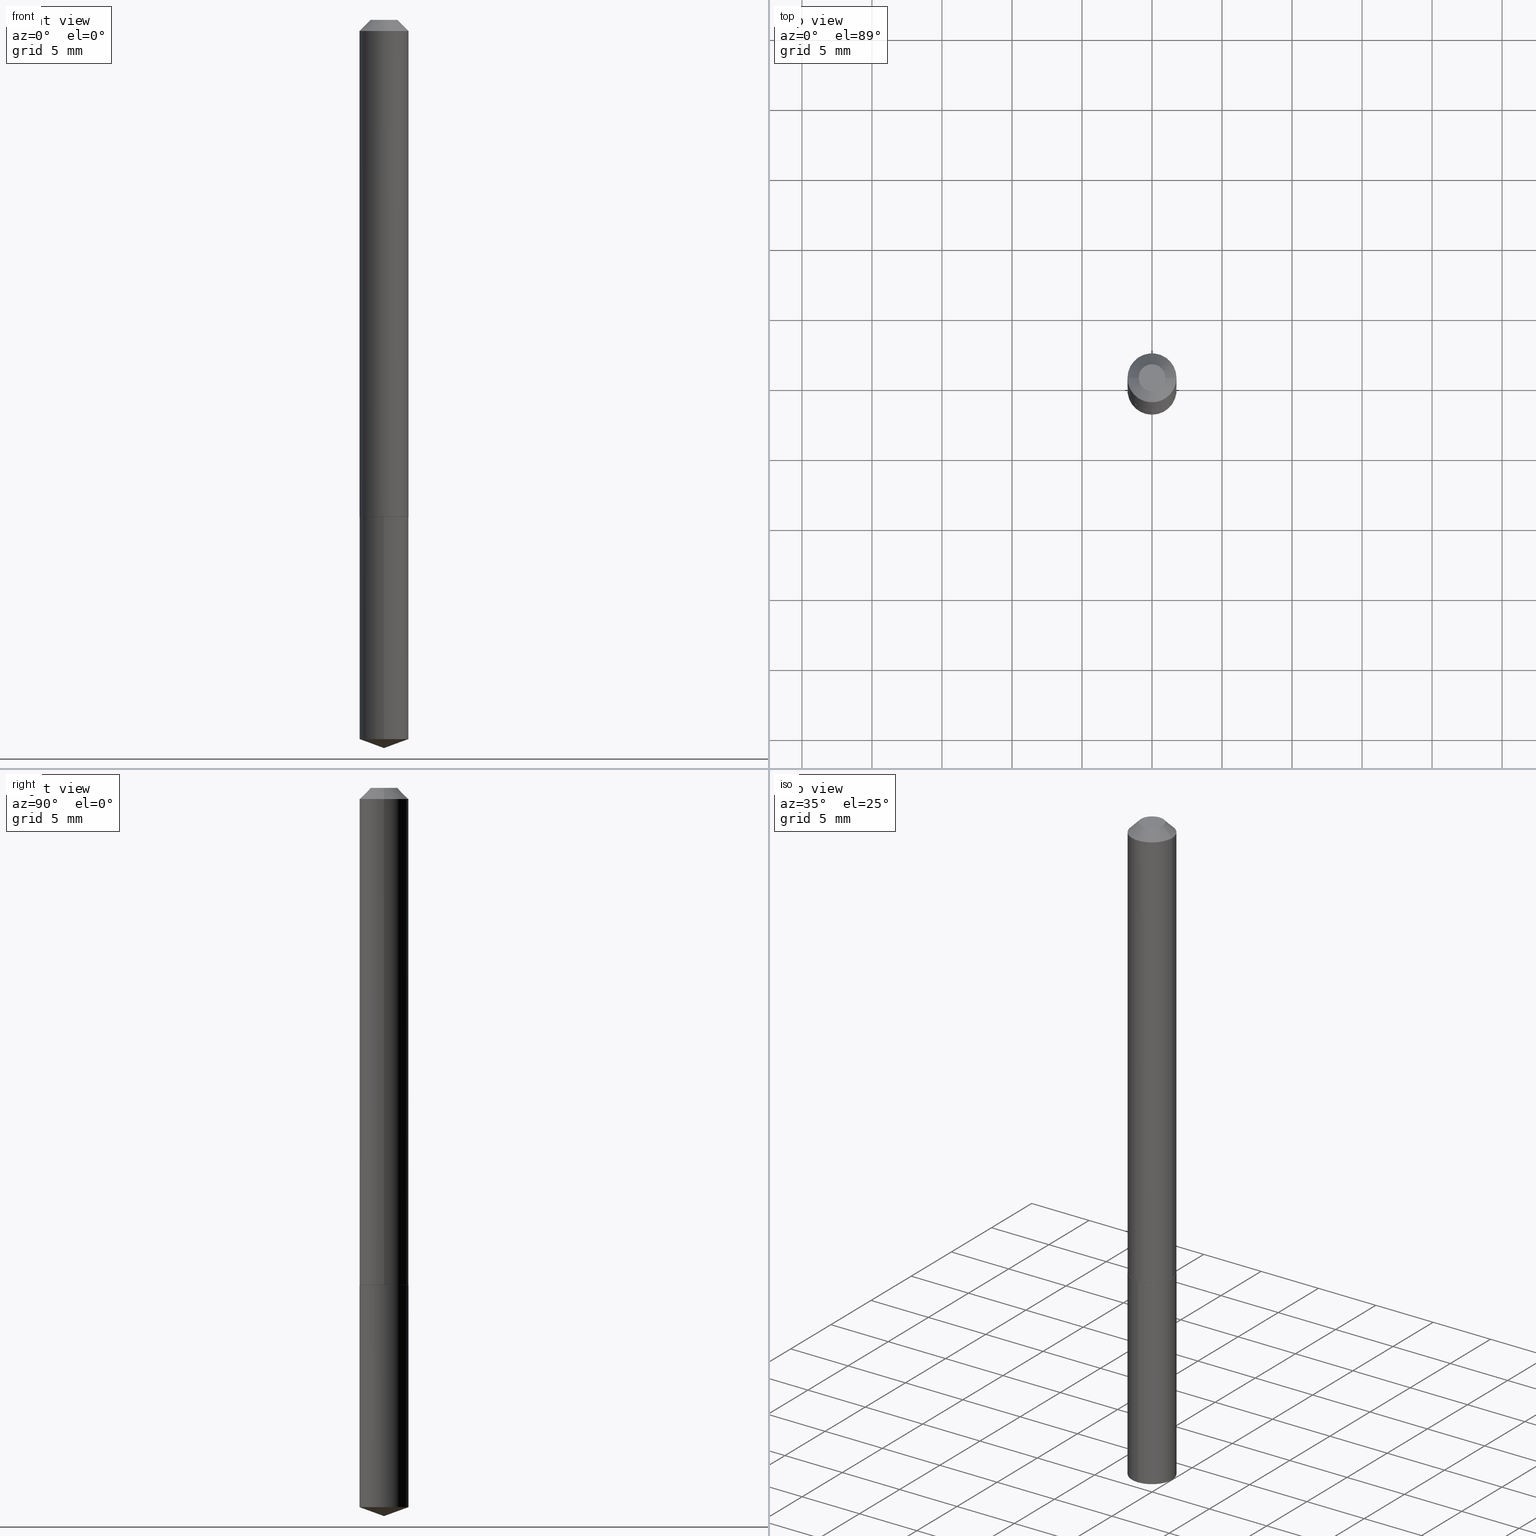
[diagram: canonical four-view strip — front | top / right | iso, engineering-drawing reading convention]
A machine part, canonical four-view strip (front | top / right | iso — engineering-drawing reading convention). The complete STEP part file that produces these views, byte-faithful:
ISO-10303-21;
HEADER;
FILE_DESCRIPTION (( 'STEP AP203' ),
    '1' );
FILE_NAME ('66012.STEP',
    '2024-04-23T11:52:27',
    ( '' ),
    ( '' ),
    'SwSTEP 2.0',
    'SolidWorks 2023',
    '' );
FILE_SCHEMA (( 'CONFIG_CONTROL_DESIGN' ));
ENDSEC;

DATA;
#1 = PERSON_AND_ORGANIZATION ( #226, #356 ) ;
#2 = CARTESIAN_POINT ( 'NONE',  ( -0.03765000000000000985, 3.174629407343114187E-16, 1.206277097158114699E-18 ) ) ;
#3 = AXIS2_PLACEMENT_3D ( 'NONE', #57, #264, #380 ) ;
#4 = ORIENTED_EDGE ( 'NONE', *, *, #389, .T. ) ;
#5 = EDGE_LOOP ( 'NONE', ( #258, #278, #136, #332 ) ) ;
#6 = LINE ( 'NONE', #368, #240 ) ;
#7 = EDGE_CURVE ( 'NONE', #360, #196, #260, .T. ) ;
#8 = VECTOR ( 'NONE', #107, 39.37007874015748143 ) ;
#9 = APPLICATION_PROTOCOL_DEFINITION ( 'international standard', 'config_control_design', 1994, #345 ) ;
#10 = PERSON_AND_ORGANIZATION ( #226, #356 ) ;
#11 = DIRECTION ( 'NONE',  ( 1.000000000000000000, -6.982962677686265922E-15, 4.876176775795935793E-29 ) ) ;
#12 = ORIENTED_EDGE ( 'NONE', *, *, #208, .F. ) ;
#13 = AXIS2_PLACEMENT_3D ( 'NONE', #27, #212, #205 ) ;
#14 = CARTESIAN_POINT ( 'NONE',  ( 3.416564469121255341E-29, -4.877948578497760120E-15, -1.397100000000000453 ) ) ;
#15 = FACE_OUTER_BOUND ( 'NONE', #259, .T. ) ;
#16 = CARTESIAN_POINT ( 'NONE',  ( 3.416564469121255341E-29, -4.877948578497760120E-15, -1.397100000000000453 ) ) ;
#17 = ORIENTED_EDGE ( 'NONE', *, *, #7, .F. ) ;
#18 = UNCERTAINTY_MEASURE_WITH_UNIT (LENGTH_MEASURE( 1.000000000000000082E-05 ), #186, 'distance_accuracy_value', 'NONE');
#19 = CIRCLE ( 'NONE', #65, 0.06840000000000028002 ) ;
#20 = APPLICATION_PROTOCOL_DEFINITION ( 'international standard', 'config_control_design', 1994, #187 ) ;
#21 = FACE_OUTER_BOUND ( 'NONE', #61, .T. ) ;
#22 = EDGE_CURVE ( 'NONE', #73, #168, #67, .T. ) ;
#23 = DIRECTION ( 'NONE',  ( 2.438088387897960049E-29, -3.491481338843145188E-15, -1.000000000000000000 ) ) ;
#24 = APPROVAL_DATE_TIME ( #82, #146 ) ;
#25 = CARTESIAN_POINT ( 'NONE',  ( 0.000000000000000000, 0.000000000000000000, 0.000000000000000000 ) ) ;
#26 = CIRCLE ( 'NONE', #13, 0.06890000000000018332 ) ;
#27 = CARTESIAN_POINT ( 'NONE',  ( 3.416564469121255341E-29, -4.877948578497760120E-15, -1.397100000000000453 ) ) ;
#28 = CC_DESIGN_PERSON_AND_ORGANIZATION_ASSIGNMENT ( #388, #171, ( #167 ) ) ;
#29 = PERSON_AND_ORGANIZATION ( #226, #356 ) ;
#30 = CARTESIAN_POINT ( 'NONE',  ( 3.417787203524348143E-29, -4.879694319167181624E-15, -1.397600000000000398 ) ) ;
#31 = CC_DESIGN_PERSON_AND_ORGANIZATION_ASSIGNMENT ( #365, #277, ( #176 ) ) ;
#32 = DIRECTION ( 'NONE',  ( -2.445468806185136597E-29, 3.491481338843145583E-15, 1.000000000000000000 ) ) ;
#33 = DIRECTION ( 'NONE',  ( -6.982962677686265922E-15, -1.000000000000000000, 3.964946289788480896E-15 ) ) ;
#34 = CARTESIAN_POINT ( 'NONE',  ( 0.000000000000000000, 0.000000000000000000, 0.000000000000000000 ) ) ;
#35 = CONICAL_SURFACE ( 'NONE', #134, 0.06890000000000000291, 0.7853981633974449483 ) ;
#36 = DIRECTION ( 'NONE',  ( -2.444479038339163535E-29, 3.492898742732666091E-15, 1.000000000000000000 ) ) ;
#37 = CC_DESIGN_PERSON_AND_ORGANIZATION_ASSIGNMENT ( #29, #153, ( #41 ) ) ;
#38 = CALENDAR_DATE ( 2024, 23, 4 ) ;
#39 = ORIENTED_EDGE ( 'NONE', *, *, #363, .T. ) ;
#40 = LINE ( 'NONE', #185, #128 ) ;
#41 = PRODUCT ( '66012', '66012', '', ( #290 ) ) ;
#42 = DIRECTION ( 'NONE',  ( -2.445468806185136877E-29, 3.491481338843145188E-15, 1.000000000000000000 ) ) ;
#43 = EDGE_CURVE ( 'NONE', #92, #228, #121, .T. ) ;
#44 = ORIENTED_EDGE ( 'NONE', *, *, #335, .T. ) ;
#45 = ORIENTED_EDGE ( 'NONE', *, *, #192, .T. ) ;
#46 = DIRECTION ( 'NONE',  ( 1.000000000000000000, -6.982962677686267499E-15, 0.000000000000000000 ) ) ;
#47 = DIRECTION ( 'NONE',  ( -2.445468806185136597E-29, 3.491481338843145583E-15, 1.000000000000000000 ) ) ;
#48 = EDGE_CURVE ( 'NONE', #160, #376, #216, .T. ) ;
#49 = DIRECTION ( 'NONE',  ( -2.445468806185136597E-29, 3.491481338843145583E-15, 1.000000000000000000 ) ) ;
#50 = ORIENTED_EDGE ( 'NONE', *, *, #43, .F. ) ;
#51 = CARTESIAN_POINT ( 'NONE',  ( -1.474956506360344439E-47, 2.105846987104261168E-33, 6.031385485800719294E-19 ) ) ;
#52 = CIRCLE ( 'NONE', #95, 0.06890000000000000291 ) ;
#53 = ADVANCED_FACE ( 'NONE', ( #15 ), #341, .T. ) ;
#54 = CONICAL_SURFACE ( 'NONE', #139, 108.1684023407382114, 1.221730476396045706 ) ;
#55 = DIRECTION ( 'NONE',  ( -2.444479038339163535E-29, 3.492898742732666091E-15, 1.000000000000000000 ) ) ;
#56 = CALENDAR_DATE ( 2024, 23, 4 ) ;
#57 = CARTESIAN_POINT ( 'NONE',  ( -2.949913012720688878E-47, 4.211693974208522336E-33, 1.206277097160143859E-18 ) ) ;
#58 = FACE_OUTER_BOUND ( 'NONE', #366, .T. ) ;
#59 = CYLINDRICAL_SURFACE ( 'NONE', #268, 0.06890000000000000291 ) ;
#60 = COORDINATED_UNIVERSAL_TIME_OFFSET ( 5, 0, .BEHIND. ) ;
#61 = EDGE_LOOP ( 'NONE', ( #138, #179, #233, #87 ) ) ;
#62 = ADVANCED_FACE ( 'NONE', ( #137 ), #155, .T. ) ;
#63 = DIRECTION ( 'NONE',  ( -2.444479038339163535E-29, 3.492898742732666091E-15, 1.000000000000000000 ) ) ;
#64 = DATE_AND_TIME ( #184, #317 ) ;
#65 = AXIS2_PLACEMENT_3D ( 'NONE', #221, #47, #287 ) ;
#66 = AXIS2_PLACEMENT_3D ( 'NONE', #189, #63, #223 ) ;
#67 = LINE ( 'NONE', #68, #225 ) ;
#68 = CARTESIAN_POINT ( 'NONE',  ( 5.007128346179250482E-29, -7.146700378770327447E-15, -2.047200000000000131 ) ) ;
#69 = DIRECTION ( 'NONE',  ( 1.000000000000000000, -6.982962677686261977E-15, 0.000000000000000000 ) ) ;
#70 = ADVANCED_FACE ( 'NONE', ( #152 ), #273, .F. ) ;
#71 = AXIS2_PLACEMENT_3D ( 'NONE', #163, #338, #343 ) ;
#72 = CIRCLE ( 'NONE', #362, 0.06840000000000028002 ) ;
#73 = VERTEX_POINT ( 'NONE', #143 ) ;
#74 = ORIENTED_EDGE ( 'NONE', *, *, #329, .T. ) ;
#75 = ADVANCED_FACE ( 'NONE', ( #238 ), #347, .F. ) ;
#76 = CARTESIAN_POINT ( 'NONE',  ( -0.06840000000000028002, -4.391033860733160202E-15, -1.397600000000000176 ) ) ;
#77 = COORDINATED_UNIVERSAL_TIME_OFFSET ( 5, 0, .BEHIND. ) ;
#78 = APPROVAL_PERSON_ORGANIZATION ( #10, #307, #157 ) ;
#79 = CARTESIAN_POINT ( 'NONE',  ( 3.417787203524348143E-29, -4.879694319167181624E-15, -1.397600000000000398 ) ) ;
#80 = DIRECTION ( 'NONE',  ( 1.000000000000000000, -6.982962677686267499E-15, 4.876176775795936353E-29 ) ) ;
#81 = CARTESIAN_POINT ( 'NONE',  ( 4.895639449387585498E-16, 0.06889999999999511793, -1.397600000000000620 ) ) ;
#82 = DATE_AND_TIME ( #56, #249 ) ;
#83 = VECTOR ( 'NONE', #109, 39.37007874015748143 ) ;
#84 = LINE ( 'NONE', #299, #275 ) ;
#85 = DIRECTION ( 'NONE',  ( 0.7071067811867346453, -2.468850131084216985E-15, 0.7071067811863603891 ) ) ;
#86 = ADVANCED_FACE ( 'NONE', ( #323 ), #295, .T. ) ;
#87 = ORIENTED_EDGE ( 'NONE', *, *, #335, .F. ) ;
#88 = ORIENTED_EDGE ( 'NONE', *, *, #219, .T. ) ;
#89 = DIRECTION ( 'NONE',  ( -2.444479038339163815E-29, 3.492898742732665697E-15, 1.000000000000000000 ) ) ;
#90 = DIRECTION ( 'NONE',  ( -0.7071067811867346453, 7.493145998871031003E-15, 0.7071067811863603891 ) ) ;
#91 = MANIFOLD_SOLID_BREP ( 'Body-Move/Copy2[2]', #383 ) ;
#92 = VERTEX_POINT ( 'NONE', #334 ) ;
#93 = DIRECTION ( 'NONE',  ( 0.000000000000000000, 0.000000000000000000, 1.000000000000000000 ) ) ;
#94 = PRODUCT_RELATED_PRODUCT_CATEGORY ( 'detail', '', ( #41 ) ) ;
#95 = AXIS2_PLACEMENT_3D ( 'NONE', #351, #32, #385 ) ;
#96 = ORIENTED_EDGE ( 'NONE', *, *, #298, .T. ) ;
#97 = ADVANCED_FACE ( 'NONE', ( #311 ), #159, .F. ) ;
#98 = DIRECTION ( 'NONE',  ( 1.000000000000000000, -6.982962677686261977E-15, 0.000000000000000000 ) ) ;
#99 = DIMENSIONAL_EXPONENTS ( 1.000000000000000000, 0.000000000000000000, 0.000000000000000000, 0.000000000000000000, 0.000000000000000000, 0.000000000000000000, 0.000000000000000000 ) ;
#100 = MANIFOLD_SOLID_BREP ( 'Body-Move/Copy2[1]', #231 ) ;
#101 = CARTESIAN_POINT ( 'NONE',  ( 3.416564469121255341E-29, -4.877948578497760120E-15, -1.397100000000000453 ) ) ;
#102 = AXIS2_PLACEMENT_3D ( 'NONE', #51, #23, #108 ) ;
#103 = CONICAL_SURFACE ( 'NONE', #66, 108.1684023407382114, 1.221730476396045706 ) ;
#104 = ORIENTED_EDGE ( 'NONE', *, *, #123, .F. ) ;
#105 = EDGE_CURVE ( 'NONE', #222, #282, #19, .T. ) ;
#106 = VERTEX_POINT ( 'NONE', #81 ) ;
#107 = DIRECTION ( 'NONE',  ( -2.445468806185136877E-29, 3.491481338843145188E-15, 1.000000000000000000 ) ) ;
#108 = DIRECTION ( 'NONE',  ( -1.000000000000000000, 6.982962677686265922E-15, -4.876176775795935793E-29 ) ) ;
#109 = DIRECTION ( 'NONE',  ( -6.561838499445236350E-15, -0.9396926207859123137, 0.3420201433256578882 ) ) ;
#110 = DIRECTION ( 'NONE',  ( -2.444479038339163535E-29, 3.492898742732666091E-15, 1.000000000000000000 ) ) ;
#111 = CARTESIAN_POINT ( 'NONE',  ( 3.417787203524348143E-29, -4.879694319167181624E-15, -1.397600000000000398 ) ) ;
#112 = CIRCLE ( 'NONE', #232, 0.06890000000000000291 ) ;
#113 = SECURITY_CLASSIFICATION_LEVEL ( 'unclassified' ) ;
#114 = CARTESIAN_POINT ( 'NONE',  ( 4.895639449387583525E-16, 0.06889999999999295299, -2.022122450859060283 ) ) ;
#115 = EDGE_CURVE ( 'NONE', #196, #376, #84, .T. ) ;
#116 = CARTESIAN_POINT ( 'NONE',  ( 4.944419243621519326E-29, -7.061088002581114316E-15, -2.022122450859059839 ) ) ;
#117 = DIRECTION ( 'NONE',  ( 1.000000000000000000, -6.982962677686261977E-15, 0.000000000000000000 ) ) ;
#118 = DATE_AND_TIME ( #327, #291 ) ;
#119 = DIRECTION ( 'NONE',  ( -6.982962677686265922E-15, -1.000000000000000000, 3.964946289788480896E-15 ) ) ;
#120 = PERSON_AND_ORGANIZATION_ROLE ( 'design_supplier' ) ;
#121 = CIRCLE ( 'NONE', #254, 0.06890000000000018332 ) ;
#122 = CIRCLE ( 'NONE', #246, 0.06890000000000000291 ) ;
#123 = EDGE_CURVE ( 'NONE', #106, #371, #336, .T. ) ;
#124 = APPROVAL_DATE_TIME ( #64, #307 ) ;
#125 = ORIENTED_EDGE ( 'NONE', *, *, #43, .T. ) ;
#126 =( NAMED_UNIT ( * ) SI_UNIT ( $, .STERADIAN. ) SOLID_ANGLE_UNIT ( ) );
#127 = DIRECTION ( 'NONE',  ( -0.7071067811865451302, 2.468850131082231817E-15, -0.7071067811865499042 ) ) ;
#128 = VECTOR ( 'NONE', #127, 39.37007874015748143 ) ;
#129 = APPROVAL_STATUS ( 'not_yet_approved' ) ;
#130 = CARTESIAN_POINT ( 'NONE',  ( 0.06890000000000018332, -5.359074706990345437E-15, -1.397100000000000453 ) ) ;
#131 = ORIENTED_EDGE ( 'NONE', *, *, #22, .F. ) ;
#132 = ORIENTED_EDGE ( 'NONE', *, *, #192, .F. ) ;
#133 = AXIS2_PLACEMENT_3D ( 'NONE', #339, #315, #46 ) ;
#134 = AXIS2_PLACEMENT_3D ( 'NONE', #296, #207, #320 ) ;
#135 = EDGE_CURVE ( 'NONE', #376, #160, #52, .T. ) ;
#136 = ORIENTED_EDGE ( 'NONE', *, *, #298, .F. ) ;
#137 = FACE_OUTER_BOUND ( 'NONE', #286, .T. ) ;
#138 = ORIENTED_EDGE ( 'NONE', *, *, #281, .F. ) ;
#139 = AXIS2_PLACEMENT_3D ( 'NONE', #172, #145, #206 ) ;
#140 = ORIENTED_EDGE ( 'NONE', *, *, #375, .T. ) ;
#141 = DIRECTION ( 'NONE',  ( -2.445468806185136597E-29, 3.491481338843145583E-15, 1.000000000000000000 ) ) ;
#142 = DIRECTION ( 'NONE',  ( -1.000000000000000000, 6.982962677686267499E-15, 0.000000000000000000 ) ) ;
#143 = CARTESIAN_POINT ( 'NONE',  ( 5.004337487287936355E-29, -7.150662306122315267E-15, -2.047200000000000131 ) ) ;
#144 = PERSON_AND_ORGANIZATION_ROLE ( 'creator' ) ;
#145 = DIRECTION ( 'NONE',  ( -2.444479038339163535E-29, 3.492898742732666091E-15, 1.000000000000000000 ) ) ;
#146 = APPROVAL ( #266, 'UNSPECIFIED' ) ;
#147 = AXIS2_PLACEMENT_3D ( 'NONE', #111, #202, #265 ) ;
#148 = VECTOR ( 'NONE', #344, 39.37007874015748143 ) ;
#149 = CC_DESIGN_PERSON_AND_ORGANIZATION_ASSIGNMENT ( #300, #144, ( #164 ) ) ;
#150 = PERSON_AND_ORGANIZATION ( #226, #356 ) ;
#151 = DIRECTION ( 'NONE',  ( -6.982962677686265922E-15, -1.000000000000000000, 3.964946289788480896E-15 ) ) ;
#152 = FACE_OUTER_BOUND ( 'NONE', #162, .T. ) ;
#153 = PERSON_AND_ORGANIZATION_ROLE ( 'design_owner' ) ;
#154 = CARTESIAN_POINT ( 'NONE',  ( 3.417787203524347582E-29, -4.879694319167180835E-15, -1.397600000000000176 ) ) ;
#155 = CONICAL_SURFACE ( 'NONE', #209, 0.06890000000000018332, 0.7853981633977129562 ) ;
#156 = EDGE_LOOP ( 'NONE', ( #340, #217 ) ) ;
#157 = APPROVAL_ROLE ( '' ) ;
#158 = CARTESIAN_POINT ( 'NONE',  ( 0.06890000000000000291, -5.902349203314328391E-16, -0.03125000000000020817 ) ) ;
#159 = PLANE ( 'NONE',  #190 ) ;
#160 = VERTEX_POINT ( 'NONE', #178 ) ;
#161 = DIRECTION ( 'NONE',  ( -2.438088387897960049E-29, 3.491481338843145188E-15, 1.000000000000000000 ) ) ;
#162 = EDGE_LOOP ( 'NONE', ( #214, #188 ) ) ;
#163 = CARTESIAN_POINT ( 'NONE',  ( -2.949913012720688878E-47, 4.211693974208522336E-33, 1.206277097160143859E-18 ) ) ;
#164 = PRODUCT_DEFINITION_FORMATION_WITH_SPECIFIED_SOURCE ( 'ANY', '', #41, .NOT_KNOWN. ) ;
#165 = EDGE_LOOP ( 'NONE', ( #235, #198, #378 ) ) ;
#166 = CARTESIAN_POINT ( 'NONE',  ( 5.004337487287936355E-29, -7.150662306122315267E-15, -2.047200000000000131 ) ) ;
#167 = PRODUCT_DEFINITION ( 'UNKNOWN', '', #164, #195 ) ;
#168 = VERTEX_POINT ( 'NONE', #114 ) ;
#169 = ORIENTED_EDGE ( 'NONE', *, *, #48, .T. ) ;
#170 = AXIS2_PLACEMENT_3D ( 'NONE', #79, #325, #151 ) ;
#171 = PERSON_AND_ORGANIZATION_ROLE ( 'creator' ) ;
#172 = CARTESIAN_POINT ( 'NONE',  ( -9.123361143124783818E-28, 1.303670171903358084E-13, 37.32287874015748486 ) ) ;
#173 = CARTESIAN_POINT ( 'NONE',  ( -4.811261284925343361E-16, -0.06890000000000705282, -2.022122450859059839 ) ) ;
#174 = ADVANCED_FACE ( 'NONE', ( #328 ), #293, .T. ) ;
#175 = LINE ( 'NONE', #390, #148 ) ;
#176 = SECURITY_CLASSIFICATION ( '', '', #113 ) ;
#177 = DIRECTION ( 'NONE',  ( -6.982962677686265922E-15, -1.000000000000000000, 3.964946289788480896E-15 ) ) ;
#178 = CARTESIAN_POINT ( 'NONE',  ( -0.06890000000000000291, -2.003964740229593886E-15, -0.03125000000000020817 ) ) ;
#179 = ORIENTED_EDGE ( 'NONE', *, *, #115, .T. ) ;
#180 = AXIS2_PLACEMENT_3D ( 'NONE', #25, #241, #80 ) ;
#181 = LINE ( 'NONE', #304, #261 ) ;
#182 = VERTEX_POINT ( 'NONE', #173 ) ;
#183 = ADVANCED_FACE ( 'NONE', ( #263 ), #54, .T. ) ;
#184 = CALENDAR_DATE ( 2024, 23, 4 ) ;
#185 = CARTESIAN_POINT ( 'NONE',  ( -0.06890000000000000291, 3.720173366537348351E-16, -0.03125000000000020817 ) ) ;
#186 =( CONVERSION_BASED_UNIT ( 'INCH', #213 ) LENGTH_UNIT ( ) NAMED_UNIT ( #99 ) );
#187 = APPLICATION_CONTEXT ( 'configuration controlled 3d designs of mechanical parts and assemblies' ) ;
#188 = ORIENTED_EDGE ( 'NONE', *, *, #281, .T. ) ;
#189 = CARTESIAN_POINT ( 'NONE',  ( -9.123361143124783818E-28, 1.303670171903358084E-13, 37.32287874015748486 ) ) ;
#190 = AXIS2_PLACEMENT_3D ( 'NONE', #364, #161, #11 ) ;
#191 = APPROVAL_PERSON_ORGANIZATION ( #150, #230, #270 ) ;
#192 = EDGE_CURVE ( 'NONE', #228, #376, #301, .T. ) ;
#193 = EDGE_LOOP ( 'NONE', ( #96, #312 ) ) ;
#194 = ORIENTED_EDGE ( 'NONE', *, *, #370, .F. ) ;
#195 = DESIGN_CONTEXT ( 'detailed design', #187, 'design' ) ;
#196 = VERTEX_POINT ( 'NONE', #324 ) ;
#197 = LOCAL_TIME ( 7, 52, 27.00000000000000000, #77 ) ;
#198 = ORIENTED_EDGE ( 'NONE', *, *, #22, .T. ) ;
#199 = ORIENTED_EDGE ( 'NONE', *, *, #242, .T. ) ;
#200 = FACE_OUTER_BOUND ( 'NONE', #229, .T. ) ;
#201 = CC_DESIGN_APPROVAL ( #146, ( #164 ) ) ;
#202 = DIRECTION ( 'NONE',  ( 2.444479038339163535E-29, -3.492898742732665697E-15, -1.000000000000000000 ) ) ;
#203 = DATE_AND_TIME ( #357, #197 ) ;
#204 = ADVANCED_FACE ( 'NONE', ( #58 ), #269, .T. ) ;
#205 = DIRECTION ( 'NONE',  ( 1.000000000000000000, -6.982962677686261977E-15, 0.000000000000000000 ) ) ;
#206 = DIRECTION ( 'NONE',  ( -6.982962677686268288E-15, -1.000000000000000000, 3.475157955500567569E-15 ) ) ;
#207 = DIRECTION ( 'NONE',  ( 2.445468806185136597E-29, -3.491481338843145583E-15, -1.000000000000000000 ) ) ;
#208 = EDGE_CURVE ( 'NONE', #168, #106, #175, .T. ) ;
#209 = AXIS2_PLACEMENT_3D ( 'NONE', #101, #141, #117 ) ;
#210 = CC_DESIGN_SECURITY_CLASSIFICATION ( #176, ( #164 ) ) ;
#211 = APPROVAL_STATUS ( 'not_yet_approved' ) ;
#212 = DIRECTION ( 'NONE',  ( -2.445468806185136597E-29, 3.491481338843145583E-15, 1.000000000000000000 ) ) ;
#213 = LENGTH_MEASURE_WITH_UNIT ( LENGTH_MEASURE( 0.02539999999999999897 ), #346 );
#214 = ORIENTED_EDGE ( 'NONE', *, *, #7, .T. ) ;
#215 = FACE_OUTER_BOUND ( 'NONE', #308, .T. ) ;
#216 = CIRCLE ( 'NONE', #133, 0.06890000000000000291 ) ;
#217 = ORIENTED_EDGE ( 'NONE', *, *, #105, .F. ) ;
#218 = CONICAL_SURFACE ( 'NONE', #309, 0.06890000000000000291, 0.7853981633974449483 ) ;
#219 = EDGE_CURVE ( 'NONE', #228, #92, #26, .T. ) ;
#220 = LINE ( 'NONE', #130, #276 ) ;
#221 = CARTESIAN_POINT ( 'NONE',  ( 3.417787203524347582E-29, -4.879694319167180835E-15, -1.397600000000000176 ) ) ;
#222 = VERTEX_POINT ( 'NONE', #76 ) ;
#223 = DIRECTION ( 'NONE',  ( -6.982962677686268288E-15, -1.000000000000000000, 3.475157955500567569E-15 ) ) ;
#224 = COORDINATED_UNIVERSAL_TIME_OFFSET ( 5, 0, .BEHIND. ) ;
#225 = VECTOR ( 'NONE', #318, 39.37007874015748854 ) ;
#226 = PERSON ( 'UNSPECIFIED', 'UNSPECIFIED', 'UNSPECIFIED', ('UNSPECIFIED'), ('UNSPECIFIED'), ('UNSPECIFIED') ) ;
#227 = ORIENTED_EDGE ( 'NONE', *, *, #105, .T. ) ;
#228 = VERTEX_POINT ( 'NONE', #386 ) ;
#229 = EDGE_LOOP ( 'NONE', ( #256, #17, #44, #169 ) ) ;
#230 = APPROVAL ( #211, 'UNSPECIFIED' ) ;
#231 = CLOSED_SHELL ( 'NONE', ( #285, #183, #314, #204, #75 ) ) ;
#232 = AXIS2_PLACEMENT_3D ( 'NONE', #116, #55, #243 ) ;
#233 = ORIENTED_EDGE ( 'NONE', *, *, #135, .T. ) ;
#234 = CC_DESIGN_DATE_AND_TIME_ASSIGNMENT ( #305, #251, ( #176 ) ) ;
#235 = ORIENTED_EDGE ( 'NONE', *, *, #389, .F. ) ;
#236 = DIRECTION ( 'NONE',  ( -2.444479038339163535E-29, 3.492898742732666091E-15, 1.000000000000000000 ) ) ;
#237 = ADVANCED_FACE ( 'NONE', ( #200 ), #35, .T. ) ;
#238 = FACE_OUTER_BOUND ( 'NONE', #193, .T. ) ;
#239 = CARTESIAN_POINT ( 'NONE',  ( 3.417787203524348143E-29, -4.879694319167181624E-15, -1.397600000000000398 ) ) ;
#240 = VECTOR ( 'NONE', #89, 39.37007874015748143 ) ;
#241 = DIRECTION ( 'NONE',  ( -2.445468806185136597E-29, 3.491481338843145583E-15, 1.000000000000000000 ) ) ;
#242 = EDGE_CURVE ( 'NONE', #168, #182, #112, .T. ) ;
#243 = DIRECTION ( 'NONE',  ( -6.982962677686265922E-15, -1.000000000000000000, 3.964946289788480896E-15 ) ) ;
#244 = APPROVAL_ROLE ( '' ) ;
#245 = CARTESIAN_POINT ( 'NONE',  ( 0.06840000000000028002, -5.357328966320923933E-15, -1.397600000000000176 ) ) ;
#246 = AXIS2_PLACEMENT_3D ( 'NONE', #30, #349, #119 ) ;
#247 = APPROVAL_DATE_TIME ( #203, #230 ) ;
#248 = CARTESIAN_POINT ( 'NONE',  ( -0.06890000000000018332, -4.388384633559049790E-15, -1.397100000000000453 ) ) ;
#249 = LOCAL_TIME ( 7, 52, 27.00000000000000000, #60 ) ;
#250 = COORDINATED_UNIVERSAL_TIME_OFFSET ( 5, 0, .BEHIND. ) ;
#251 = DATE_TIME_ROLE ( 'classification_date' ) ;
#252 = PRODUCT_DEFINITION_SHAPE ( 'NONE', 'NONE',  #167 ) ;
#253 = ORIENTED_EDGE ( 'NONE', *, *, #375, .F. ) ;
#254 = AXIS2_PLACEMENT_3D ( 'NONE', #16, #313, #98 ) ;
#255 = AXIS2_PLACEMENT_3D ( 'NONE', #333, #36, #33 ) ;
#256 = ORIENTED_EDGE ( 'NONE', *, *, #115, .F. ) ;
#257 = LINE ( 'NONE', #166, #83 ) ;
#258 = ORIENTED_EDGE ( 'NONE', *, *, #302, .T. ) ;
#259 = EDGE_LOOP ( 'NONE', ( #74, #140, #289, #283 ) ) ;
#260 = CIRCLE ( 'NONE', #71, 0.03765000000000000985 ) ;
#261 = VECTOR ( 'NONE', #42, 39.37007874015748143 ) ;
#262 = ORIENTED_EDGE ( 'NONE', *, *, #48, .F. ) ;
#263 = FACE_OUTER_BOUND ( 'NONE', #165, .T. ) ;
#264 = DIRECTION ( 'NONE',  ( -2.445468806185136597E-29, 3.491481338843145583E-15, 1.000000000000000000 ) ) ;
#265 = DIRECTION ( 'NONE',  ( 6.982962677686265922E-15, 1.000000000000000000, -3.492898742732665697E-15 ) ) ;
#266 = APPROVAL_STATUS ( 'not_yet_approved' ) ;
#267 = CARTESIAN_POINT ( 'NONE',  ( 3.417787203524348143E-29, -4.879694319167181624E-15, -1.397600000000000398 ) ) ;
#268 = AXIS2_PLACEMENT_3D ( 'NONE', #267, #110, #177 ) ;
#269 = CYLINDRICAL_SURFACE ( 'NONE', #297, 0.06890000000000000291 ) ;
#270 = APPROVAL_ROLE ( '' ) ;
#271 = ADVANCED_FACE ( 'NONE', ( #21 ), #218, .T. ) ;
#272 = DIRECTION ( 'NONE',  ( -6.982962677686265922E-15, -1.000000000000000000, 3.964946289788480896E-15 ) ) ;
#273 = PLANE ( 'NONE',  #102 ) ;
#274 = DIRECTION ( 'NONE',  ( 1.000000000000000000, -6.982962677686272233E-15, 0.000000000000000000 ) ) ;
#275 = VECTOR ( 'NONE', #294, 39.37007874015748143 ) ;
#276 = VECTOR ( 'NONE', #85, 39.37007874015748143 ) ;
#277 = PERSON_AND_ORGANIZATION_ROLE ( 'classification_officer' ) ;
#278 = ORIENTED_EDGE ( 'NONE', *, *, #208, .T. ) ;
#279 = LINE ( 'NONE', #248, #342 ) ;
#280 = DIRECTION ( 'NONE',  ( 1.000000000000000000, -6.982962677686267499E-15, 4.876176775795936353E-29 ) ) ;
#281 = EDGE_CURVE ( 'NONE', #196, #360, #348, .T. ) ;
#282 = VERTEX_POINT ( 'NONE', #245 ) ;
#283 = ORIENTED_EDGE ( 'NONE', *, *, #381, .F. ) ;
#284 = CC_DESIGN_APPROVAL ( #230, ( #167 ) ) ;
#285 = ADVANCED_FACE ( 'NONE', ( #352 ), #59, .T. ) ;
#286 = EDGE_LOOP ( 'NONE', ( #253, #227, #330, #50 ) ) ;
#287 = DIRECTION ( 'NONE',  ( 1.000000000000000000, -6.982962677686272233E-15, 0.000000000000000000 ) ) ;
#288 = ORIENTED_EDGE ( 'NONE', *, *, #135, .F. ) ;
#289 = ORIENTED_EDGE ( 'NONE', *, *, #219, .F. ) ;
#290 = MECHANICAL_CONTEXT ( 'NONE', #345, 'mechanical' ) ;
#291 = LOCAL_TIME ( 7, 52, 27.00000000000000000, #353 ) ;
#292 = DATE_TIME_ROLE ( 'creation_date' ) ;
#293 = CYLINDRICAL_SURFACE ( 'NONE', #180, 0.06890000000000008618 ) ;
#294 = DIRECTION ( 'NONE',  ( 0.7071067811865451302, -7.319954787623248157E-15, -0.7071067811865499042 ) ) ;
#295 = CYLINDRICAL_SURFACE ( 'NONE', #355, 0.06890000000000008618 ) ;
#296 = CARTESIAN_POINT ( 'NONE',  ( 7.642090019328602662E-31, -1.091087918388490267E-16, -0.03125000000000020817 ) ) ;
#297 = AXIS2_PLACEMENT_3D ( 'NONE', #239, #236, #272 ) ;
#298 = EDGE_CURVE ( 'NONE', #371, #106, #122, .T. ) ;
#299 = CARTESIAN_POINT ( 'NONE',  ( 0.06890000000000000291, -5.817971038853076275E-16, -0.03125000000000020817 ) ) ;
#300 = PERSON_AND_ORGANIZATION ( #226, #356 ) ;
#301 = LINE ( 'NONE', #379, #8 ) ;
#302 = EDGE_CURVE ( 'NONE', #182, #168, #326, .T. ) ;
#303 = AXIS2_PLACEMENT_3D ( 'NONE', #14, #49, #69 ) ;
#304 = CARTESIAN_POINT ( 'NONE',  ( -0.06890000000000008618, 4.895639449387096404E-16, -3.389146277185634221E-30 ) ) ;
#305 = DATE_AND_TIME ( #38, #384 ) ;
#306 = SHAPE_DEFINITION_REPRESENTATION ( #252, #387 ) ;
#307 = APPROVAL ( #129, 'UNSPECIFIED' ) ;
#308 = EDGE_LOOP ( 'NONE', ( #131, #4, #319 ) ) ;
#309 = AXIS2_PLACEMENT_3D ( 'NONE', #354, #322, #142 ) ;
#310 = CARTESIAN_POINT ( 'NONE',  ( -4.811261284925496203E-16, -0.06890000000000488789, -1.397600000000000176 ) ) ;
#311 = FACE_OUTER_BOUND ( 'NONE', #156, .T. ) ;
#312 = ORIENTED_EDGE ( 'NONE', *, *, #123, .T. ) ;
#313 = DIRECTION ( 'NONE',  ( -2.445468806185136597E-29, 3.491481338843145583E-15, 1.000000000000000000 ) ) ;
#314 = ADVANCED_FACE ( 'NONE', ( #215 ), #103, .T. ) ;
#315 = DIRECTION ( 'NONE',  ( -2.445468806185136597E-29, 3.491481338843145583E-15, 1.000000000000000000 ) ) ;
#316 = DIRECTION ( 'NONE',  ( 1.000000000000000000, 0.000000000000000000, 0.000000000000000000 ) ) ;
#317 = LOCAL_TIME ( 7, 52, 27.00000000000000000, #250 ) ;
#318 = DIRECTION ( 'NONE',  ( 6.676917655468002839E-15, 0.9396926207859146452, 0.3420201433256512824 ) ) ;
#319 = ORIENTED_EDGE ( 'NONE', *, *, #242, .F. ) ;
#320 = DIRECTION ( 'NONE',  ( -1.000000000000000000, 6.982962677686267499E-15, 0.000000000000000000 ) ) ;
#321 = AXIS2_PLACEMENT_3D ( 'NONE', #367, #93, #316 ) ;
#322 = DIRECTION ( 'NONE',  ( 2.445468806185136597E-29, -3.491481338843145583E-15, -1.000000000000000000 ) ) ;
#323 = FACE_OUTER_BOUND ( 'NONE', #373, .T. ) ;
#324 = CARTESIAN_POINT ( 'NONE',  ( 0.03765000000000000985, -4.200474267507028965E-16, 1.206277097162531242E-18 ) ) ;
#325 = DIRECTION ( 'NONE',  ( -2.444479038339163535E-29, 3.492898742732666091E-15, 1.000000000000000000 ) ) ;
#326 = CIRCLE ( 'NONE', #255, 0.06890000000000000291 ) ;
#327 = CALENDAR_DATE ( 2024, 23, 4 ) ;
#328 = FACE_OUTER_BOUND ( 'NONE', #374, .T. ) ;
#329 = EDGE_CURVE ( 'NONE', #282, #222, #72, .T. ) ;
#330 = ORIENTED_EDGE ( 'NONE', *, *, #381, .T. ) ;
#331 =( GEOMETRIC_REPRESENTATION_CONTEXT ( 3 ) GLOBAL_UNCERTAINTY_ASSIGNED_CONTEXT ( ( #18 ) ) GLOBAL_UNIT_ASSIGNED_CONTEXT ( ( #186, #337, #126 ) ) REPRESENTATION_CONTEXT ( 'NONE', 'WORKASPACE' ) );
#332 = ORIENTED_EDGE ( 'NONE', *, *, #363, .F. ) ;
#333 = CARTESIAN_POINT ( 'NONE',  ( 4.944419243621519326E-29, -7.061088002581114316E-15, -2.022122450859059839 ) ) ;
#334 = CARTESIAN_POINT ( 'NONE',  ( -0.06890000000000018332, -4.388384633559049790E-15, -1.397100000000000453 ) ) ;
#335 = EDGE_CURVE ( 'NONE', #360, #160, #40, .T. ) ;
#336 = CIRCLE ( 'NONE', #170, 0.06890000000000000291 ) ;
#337 =( NAMED_UNIT ( * ) PLANE_ANGLE_UNIT ( ) SI_UNIT ( $, .RADIAN. ) );
#338 = DIRECTION ( 'NONE',  ( -2.445468806185136597E-29, 3.491481338843145583E-15, 1.000000000000000000 ) ) ;
#339 = CARTESIAN_POINT ( 'NONE',  ( 7.642090019328602662E-31, -1.091087918388490267E-16, -0.03125000000000020817 ) ) ;
#340 = ORIENTED_EDGE ( 'NONE', *, *, #329, .F. ) ;
#341 = CONICAL_SURFACE ( 'NONE', #303, 0.06890000000000018332, 0.7853981633977129562 ) ;
#342 = VECTOR ( 'NONE', #90, 39.37007874015748143 ) ;
#343 = DIRECTION ( 'NONE',  ( 1.000000000000000000, -6.982962677686266711E-15, 4.876199012713025796E-29 ) ) ;
#344 = DIRECTION ( 'NONE',  ( -2.444479038339163815E-29, 3.492898742732665697E-15, 1.000000000000000000 ) ) ;
#345 = APPLICATION_CONTEXT ( 'configuration controlled 3d designs of mechanical parts and assemblies' ) ;
#346 =( LENGTH_UNIT ( ) NAMED_UNIT ( * ) SI_UNIT ( $, .METRE. ) );
#347 = PLANE ( 'NONE',  #147 ) ;
#348 = CIRCLE ( 'NONE', #3, 0.03765000000000000985 ) ;
#349 = DIRECTION ( 'NONE',  ( -2.444479038339163535E-29, 3.492898742732666091E-15, 1.000000000000000000 ) ) ;
#350 = CC_DESIGN_DATE_AND_TIME_ASSIGNMENT ( #118, #292, ( #167 ) ) ;
#351 = CARTESIAN_POINT ( 'NONE',  ( 7.642090019328602662E-31, -1.091087918388490267E-16, -0.03125000000000020817 ) ) ;
#352 = FACE_OUTER_BOUND ( 'NONE', #5, .T. ) ;
#353 = COORDINATED_UNIVERSAL_TIME_OFFSET ( 5, 0, .BEHIND. ) ;
#354 = CARTESIAN_POINT ( 'NONE',  ( 7.642090019328602662E-31, -1.091087918388490267E-16, -0.03125000000000020817 ) ) ;
#355 = AXIS2_PLACEMENT_3D ( 'NONE', #34, #361, #280 ) ;
#356 = ORGANIZATION ( 'UNSPECIFIED', 'UNSPECIFIED', '' ) ;
#357 = CALENDAR_DATE ( 2024, 23, 4 ) ;
#358 = ORIENTED_EDGE ( 'NONE', *, *, #370, .T. ) ;
#359 = DIRECTION ( 'NONE',  ( -2.445468806185136597E-29, 3.491481338843145583E-15, 1.000000000000000000 ) ) ;
#360 = VERTEX_POINT ( 'NONE', #2 ) ;
#361 = DIRECTION ( 'NONE',  ( -2.445468806185136597E-29, 3.491481338843145583E-15, 1.000000000000000000 ) ) ;
#362 = AXIS2_PLACEMENT_3D ( 'NONE', #154, #359, #274 ) ;
#363 = EDGE_CURVE ( 'NONE', #182, #371, #6, .T. ) ;
#364 = CARTESIAN_POINT ( 'NONE',  ( 3.417787203524348143E-29, -4.879694319167181624E-15, -1.397600000000000398 ) ) ;
#365 = PERSON_AND_ORGANIZATION ( #226, #356 ) ;
#366 = EDGE_LOOP ( 'NONE', ( #12, #199, #39, #104 ) ) ;
#367 = CARTESIAN_POINT ( 'NONE',  ( 0.000000000000000000, 0.000000000000000000, 0.000000000000000000 ) ) ;
#368 = CARTESIAN_POINT ( 'NONE',  ( -4.811261284925496203E-16, -0.06890000000000488789, -1.397600000000000176 ) ) ;
#369 = CC_DESIGN_PERSON_AND_ORGANIZATION_ASSIGNMENT ( #1, #120, ( #164 ) ) ;
#370 = EDGE_CURVE ( 'NONE', #92, #160, #181, .T. ) ;
#371 = VERTEX_POINT ( 'NONE', #310 ) ;
#372 = APPROVAL_PERSON_ORGANIZATION ( #382, #146, #244 ) ;
#373 = EDGE_LOOP ( 'NONE', ( #88, #358, #288, #132 ) ) ;
#374 = EDGE_LOOP ( 'NONE', ( #194, #125, #45, #262 ) ) ;
#375 = EDGE_CURVE ( 'NONE', #222, #92, #279, .T. ) ;
#376 = VERTEX_POINT ( 'NONE', #158 ) ;
#377 = CC_DESIGN_APPROVAL ( #307, ( #176 ) ) ;
#378 = ORIENTED_EDGE ( 'NONE', *, *, #302, .F. ) ;
#379 = CARTESIAN_POINT ( 'NONE',  ( 0.06890000000000008618, -4.811261284925844287E-16, 3.359685798523404173E-30 ) ) ;
#380 = DIRECTION ( 'NONE',  ( 1.000000000000000000, -6.982962677686266711E-15, 4.876199012713025796E-29 ) ) ;
#381 = EDGE_CURVE ( 'NONE', #282, #228, #220, .T. ) ;
#382 = PERSON_AND_ORGANIZATION ( #226, #356 ) ;
#383 = CLOSED_SHELL ( 'NONE', ( #271, #86, #53, #97, #62, #174, #237, #70 ) ) ;
#384 = LOCAL_TIME ( 7, 52, 27.00000000000000000, #224 ) ;
#385 = DIRECTION ( 'NONE',  ( 1.000000000000000000, -6.982962677686267499E-15, 0.000000000000000000 ) ) ;
#386 = CARTESIAN_POINT ( 'NONE',  ( 0.06890000000000018332, -5.359074706990345437E-15, -1.397100000000000453 ) ) ;
#387 = ADVANCED_BREP_SHAPE_REPRESENTATION ( '66012', ( #100, #91, #321 ), #331 ) ;
#388 = PERSON_AND_ORGANIZATION ( #226, #356 ) ;
#389 = EDGE_CURVE ( 'NONE', #73, #182, #257, .T. ) ;
#390 = CARTESIAN_POINT ( 'NONE',  ( 4.895639449387431670E-16, 0.06889999999999511793, -1.397600000000000620 ) ) ;
ENDSEC;
END-ISO-10303-21;
